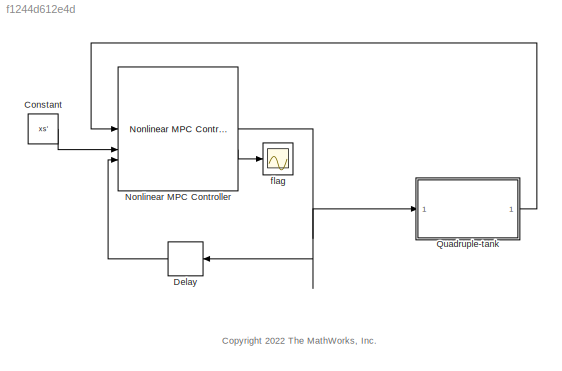
MODEL slx_f1244d612e4d
KIND model
CONFIG AbsTol = auto
CONFIG EnableMultiTasking = off
CONFIG FixedStep = auto
CONFIG MaxStep = auto
CONFIG MinStep = auto
CONFIG RelTol = 1e-3
CONFIG SampleTimeConstraint = Unconstrained
CONFIG SolverName = VariableStepAuto
CONFIG StartTime = 0.0
CONFIG StopTime = 300
BLOCK [Constant] Constant
  Value = xs'
  VectorParams1D = off
BLOCK [Delay] Delay
  DelayLength = 1
  InitialCondition = 0
  InputPortMap = u0
BLOCK [Reference] Nonlinear MPC Controller  REF=mpclib/Nonlinear MPC Controller  (lib defined in mdl_ae329e0e0455)
  SourceBlock = mpclib/Nonlinear MPC Controller
  SourceType = NonlinearMPC
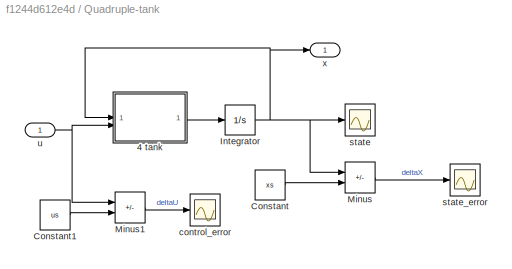
BLOCK [SubSystem] Quadruple-tank
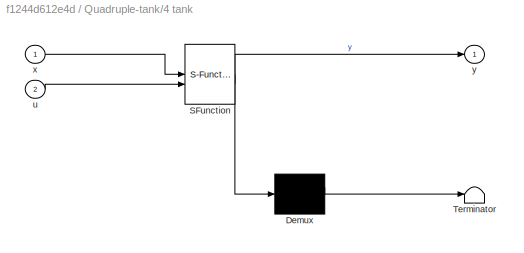
BLOCK [SubSystem] Quadruple-tank/4 tank
  ErrorFcn = Stateflow.Translate.translate
  PermitHierarchicalResolution = ExplicitOnly
  SFBlockType = MATLAB Function
  TreatAsAtomicUnit = on
BLOCK [Demux] Quadruple-tank/4 tank/ Demux 
  Outputs = 1
BLOCK [S-Function] Quadruple-tank/4 tank/ SFunction 
  EnableBusSupport = off
  FunctionName = sf_sfun
  PortCounts = [2 2]
  SFcnIsStateOwnerBlock = off
  SFunctionDeploymentMode = off
  Tag = Stateflow S-Function 2
BLOCK [Terminator] Quadruple-tank/4 tank/ Terminator 
BLOCK [Inport] Quadruple-tank/4 tank/u
  Port = 2
BLOCK [Inport] Quadruple-tank/4 tank/x
BLOCK [Outport] Quadruple-tank/4 tank/y
BLOCK [Constant] Quadruple-tank/Constant
  Value = xs
  VectorParams1D = off
BLOCK [Constant] Quadruple-tank/Constant1
  Value = us
  VectorParams1D = off
BLOCK [Integrator] Quadruple-tank/Integrator
  InitialCondition = x0
BLOCK [Sum] Quadruple-tank/Minus
  IconShape = rectangular
  Inputs = +-
BLOCK [Sum] Quadruple-tank/Minus1
  IconShape = rectangular
  Inputs = +-
BLOCK [Scope] Quadruple-tank/control_error
  Floating = off
  NumInputPorts = 1
  ScopeSpecificationString = Simulink.scopes.TimeScopeBlockCfg('CurrentConfiguration', extmgr.ConfigurationSet(extmgr.Configuration('Core','General UI',true),extmgr.Configuration('Core','Source UI',true),extmgr.Configuration('Sources','WiredSimulink',true,'DataLoggingVariableName','ScopeData2'),extmgr.Configuration('Visuals','Time Domain',true,'SerializedDisplays',{struct('MinYLimReal','-42.77067','MaxYLimReal','56.4544','YLa...<+1429ch>
BLOCK [Scope] Quadruple-tank/state
  Floating = off
  NumInputPorts = 1
  ScopeSpecificationString = Simulink.scopes.TimeScopeBlockCfg('CurrentConfiguration', extmgr.ConfigurationSet(extmgr.Configuration('Core','General UI',true),extmgr.Configuration('Core','Source UI',true),extmgr.Configuration('Sources','WiredSimulink',true),extmgr.Configuration('Visuals','Time Domain',true,'SerializedDisplays',{struct('MinYLimReal','11.02952','MaxYLimReal','35.13682','YLabelReal','','MinYLimMag','11.02952','Ma...<+1394ch>
BLOCK [Scope] Quadruple-tank/state_error
  Floating = off
  NumInputPorts = 1
  ScopeSpecificationString = Simulink.scopes.TimeScopeBlockCfg('CurrentConfiguration', extmgr.ConfigurationSet(extmgr.Configuration('Core','General UI',true),extmgr.Configuration('Core','Source UI',true),extmgr.Configuration('Sources','WiredSimulink',true,'DataLoggingVariableName','ScopeData1'),extmgr.Configuration('Visuals','Time Domain',true,'SerializedDisplays',{struct('MinYLimReal','-4.83421','MaxYLimReal','2.31591','YLab...<+1427ch>
BLOCK [Inport] Quadruple-tank/u
BLOCK [Outport] Quadruple-tank/x
BLOCK [Scope] flag
  Floating = off
  NumInputPorts = 1
  ScopeSpecificationString = Simulink.scopes.TimeScopeBlockCfg('CurrentConfiguration', extmgr.ConfigurationSet(extmgr.Configuration('Core','General UI',true),extmgr.Configuration('Core','Source UI',true),extmgr.Configuration('Sources','WiredSimulink',true,'DataLoggingVariableName','ScopeData4'),extmgr.Configuration('Visuals','Time Domain',true,'SerializedDisplays',{struct('MinYLimReal','0.875','MaxYLimReal','2.125','YLabelRea...<+1375ch>
ANNOTATION (root): <copyright redacted>
LINE Constant:1 -> Nonlinear MPC Controller:2
LINE Delay:1 -> Nonlinear MPC Controller:3
NET Nonlinear MPC Controller:1 -> Delay:1, Quadruple-tank:1
LINE Nonlinear MPC Controller:2 -> flag:1
LINE Quadruple-tank/4 tank:1 -> Quadruple-tank/Integrator:1
LINE Quadruple-tank/Constant1:1 -> Quadruple-tank/Minus1:2
LINE Quadruple-tank/Constant:1 -> Quadruple-tank/Minus:2
NET Quadruple-tank/Integrator:1 -> Quadruple-tank/4 tank:1, Quadruple-tank/Minus:1, Quadruple-tank/state:1, Quadruple-tank/x:1
LINE Quadruple-tank/Minus1:1 -> Quadruple-tank/control_error:1
LINE Quadruple-tank/Minus:1 -> Quadruple-tank/state_error:1
NET Quadruple-tank/u:1 -> Quadruple-tank/4 tank:2, Quadruple-tank/Minus1:1
LINE Quadruple-tank:1 -> Nonlinear MPC Controller:1
note: NET lines group one-source signal fan-out (src -> all destinations, sorted); 1:1 wires keep LINE
CHART Quadruple-tank/4 tank states=1 transitions=1
  STATE_LABEL 'eML_blk_kernel()'
  STATE_LABEL 'SCRIPT:\nfunction y = fcn(x,u)\n\ny = stateFcnQuadrupleTank(x,u);\n'
CHART  states=0 transitions=0
